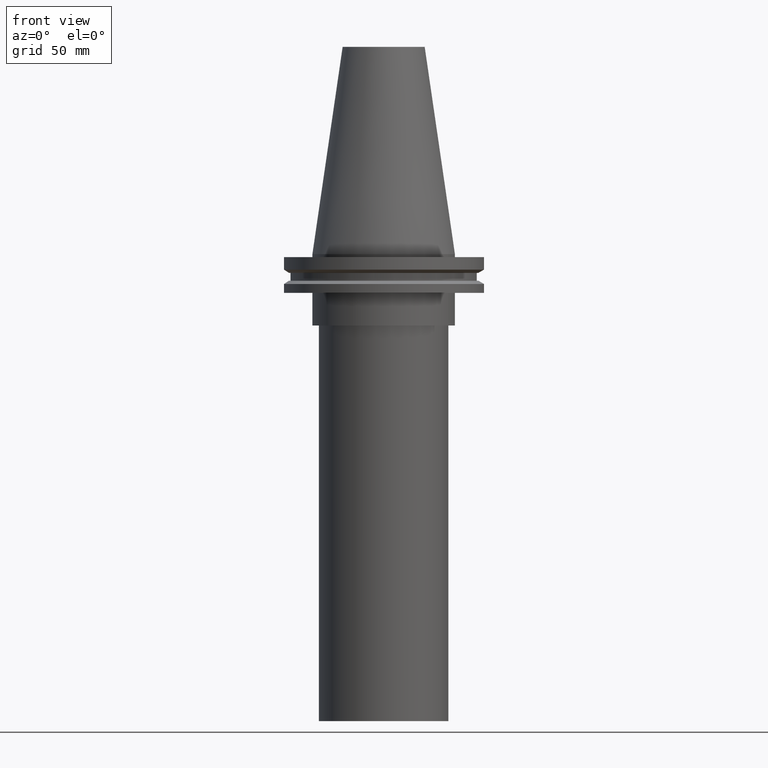
[diagram: clean part render]
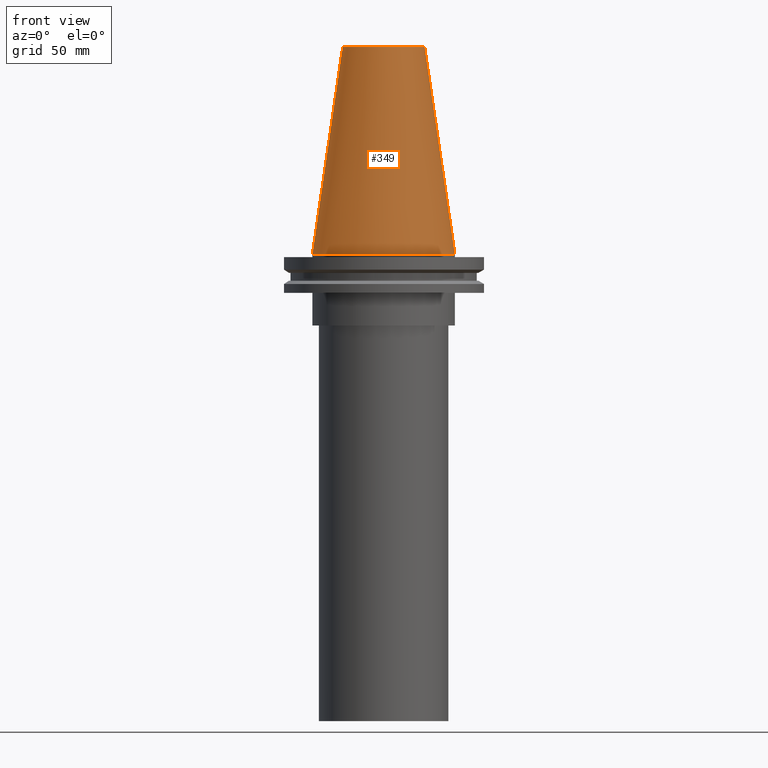
[diagram: same view with one face highlighted and labeled with its STEP entity id]
A machine part, front view. The second image highlights one B-rep face of the part: STEP entity #349.
In plain terms, the highlighted conical surface has half-angle 8.297 deg.
Its self-contained STEP definition (entity closure, byte-faithful):
#2 = DIRECTION ( 'NONE',  ( 1.000000000000000000, 0.000000000000000000, 0.000000000000000000 ) ) ;
#14 = CARTESIAN_POINT ( 'NONE',  ( 34.92499999999999005, 0.000000000000000000, 0.000000000000000000 ) ) ;
#25 = DIRECTION ( 'NONE',  ( -0.000000000000000000, -0.000000000000000000, 1.000000000000000000 ) ) ;
#33 = CARTESIAN_POINT ( 'NONE',  ( 0.000000000000000000, 0.000000000000000000, 0.000000000000000000 ) ) ;
#57 = DIRECTION ( 'NONE',  ( 1.000000000000000000, 0.000000000000000000, 0.000000000000000000 ) ) ;
#107 = VERTEX_POINT ( 'NONE', #14 ) ;
#117 = CIRCLE ( 'NONE', #166, 20.10819343178871321 ) ;
#123 = EDGE_CURVE ( 'NONE', #107, #107, #248, .T. ) ;
#126 = VERTEX_POINT ( 'NONE', #219 ) ;
#153 = EDGE_CURVE ( 'NONE', #126, #126, #117, .T. ) ;
#157 = DIRECTION ( 'NONE',  ( 0.000000000000000000, 0.000000000000000000, -1.000000000000000000 ) ) ;
#159 = AXIS2_PLACEMENT_3D ( 'NONE', #33, #25, #57 ) ;
#166 = AXIS2_PLACEMENT_3D ( 'NONE', #208, #336, #2 ) ;
#190 = ORIENTED_EDGE ( 'NONE', *, *, #153, .F. ) ;
#192 = EDGE_LOOP ( 'NONE', ( #190 ) ) ;
#194 = CARTESIAN_POINT ( 'NONE',  ( 0.000000000000000000, 0.000000000000000000, 0.000000000000000000 ) ) ;
#208 = CARTESIAN_POINT ( 'NONE',  ( 0.000000000000000000, 0.000000000000000000, 101.5999999999999801 ) ) ;
#219 = CARTESIAN_POINT ( 'NONE',  ( 20.10819343178871321, 0.000000000000000000, 101.5999999999999801 ) ) ;
#221 = CONICAL_SURFACE ( 'NONE', #326, 34.92499999999999005, 0.1448138465474119452 ) ;
#224 = ORIENTED_EDGE ( 'NONE', *, *, #123, .T. ) ;
#225 = FACE_BOUND ( 'NONE', #192, .T. ) ;
#248 = CIRCLE ( 'NONE', #159, 34.92499999999999005 ) ;
#313 = EDGE_LOOP ( 'NONE', ( #224 ) ) ;
#326 = AXIS2_PLACEMENT_3D ( 'NONE', #194, #157, #378 ) ;
#336 = DIRECTION ( 'NONE',  ( -0.000000000000000000, -0.000000000000000000, 1.000000000000000000 ) ) ;
#349 = ADVANCED_FACE ( 'NONE', ( #225, #351 ), #221, .T. ) ;
#351 = FACE_OUTER_BOUND ( 'NONE', #313, .T. ) ;
#378 = DIRECTION ( 'NONE',  ( -1.000000000000000000, 0.000000000000000000, 0.000000000000000000 ) ) ;